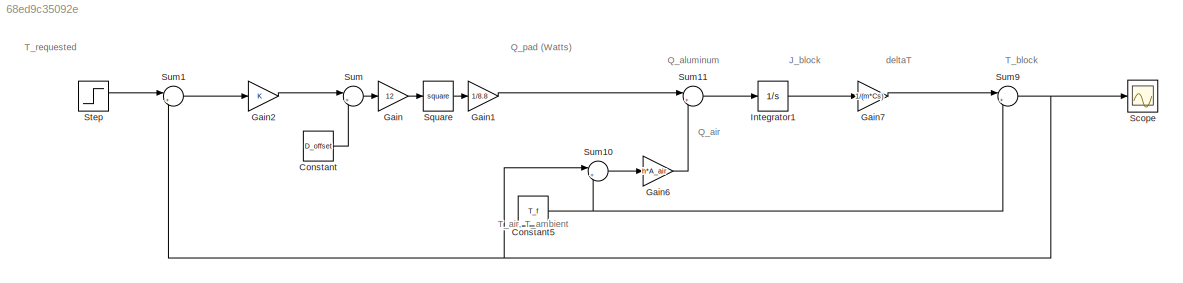
MODEL slx_68ed9c35092e
KIND model
CONFIG AbsTol = auto
CONFIG EnableMultiTasking = off
CONFIG FixedStep = auto
CONFIG MaxStep = auto
CONFIG MinStep = auto
CONFIG RelTol = 1e-3
CONFIG SampleTimeConstraint = Unconstrained
CONFIG SolverName = VariableStepAuto
CONFIG StartTime = 0.0
CONFIG StopTime = 10000.0
BLOCK [Constant] Constant
  Value = D_offset
BLOCK [Constant] Constant5
  Value = T_f
BLOCK [Gain] Gain
  Gain = 12
BLOCK [Gain] Gain1
  Gain = 1/8.8
BLOCK [Gain] Gain2
  Gain = K
BLOCK [Gain] Gain6
  Gain = h*A_air
BLOCK [Gain] Gain7
  Gain = 1/(m*Cs)
BLOCK [Integrator] Integrator1
BLOCK [Scope] Scope
  Floating = off
  NumInputPorts = 1
  ScopeSpecificationString = Simulink.scopes.TimeScopeBlockCfg('CurrentConfiguration', extmgr.ConfigurationSet(extmgr.Configuration('Core','General UI',true),extmgr.Configuration('Core','Source UI',true),extmgr.Configuration('Sources','WiredSimulink',true),extmgr.Configuration('Visuals','Time Domain',true,'SerializedDisplays',{struct('MinYLimReal','24.38113','MaxYLimReal','30.56987','YLabelReal','','MinYLimMag','24.38113','Ma...<+1445ch>
BLOCK [Math] Square
  Operator = square
BLOCK [Step] Step
  After = 29
  Before = 25
  SampleTime = 0
BLOCK [Sum] Sum
  Inputs = |++
BLOCK [Sum] Sum1
  Inputs = |+-
BLOCK [Sum] Sum10
  Inputs = |+-
BLOCK [Sum] Sum11
  Inputs = |+-
BLOCK [Sum] Sum9
  Inputs = |++
ANNOTATION (root): J_block
ANNOTATION (root): Q_air
ANNOTATION (root): Q_aluminum
ANNOTATION (root): Q_pad (Watts)
ANNOTATION (root): T_air, T_ambient
ANNOTATION (root): T_block
ANNOTATION (root): T_requested
ANNOTATION (root): deltaT
NET Constant5:1 -> Sum10:2, Sum9:2
LINE Constant:1 -> Sum:2
LINE Gain1:1 -> Sum11:1
LINE Gain2:1 -> Sum:1
LINE Gain6:1 -> Sum11:2
LINE Gain7:1 -> Sum9:1
LINE Gain:1 -> Square:1
LINE Integrator1:1 -> Gain7:1
LINE Square:1 -> Gain1:1
LINE Step:1 -> Sum1:1
LINE Sum10:1 -> Gain6:1
LINE Sum11:1 -> Integrator1:1
LINE Sum1:1 -> Gain2:1
NET Sum9:1 -> Scope:1, Sum10:1, Sum1:2
LINE Sum:1 -> Gain:1
note: NET lines group one-source signal fan-out (src -> all destinations, sorted); 1:1 wires keep LINE
